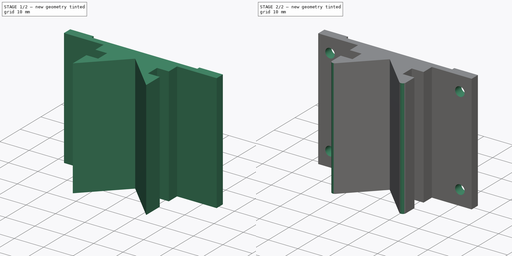
[diagram: build sequence overview — one tinted view per stage of 2, left to right]
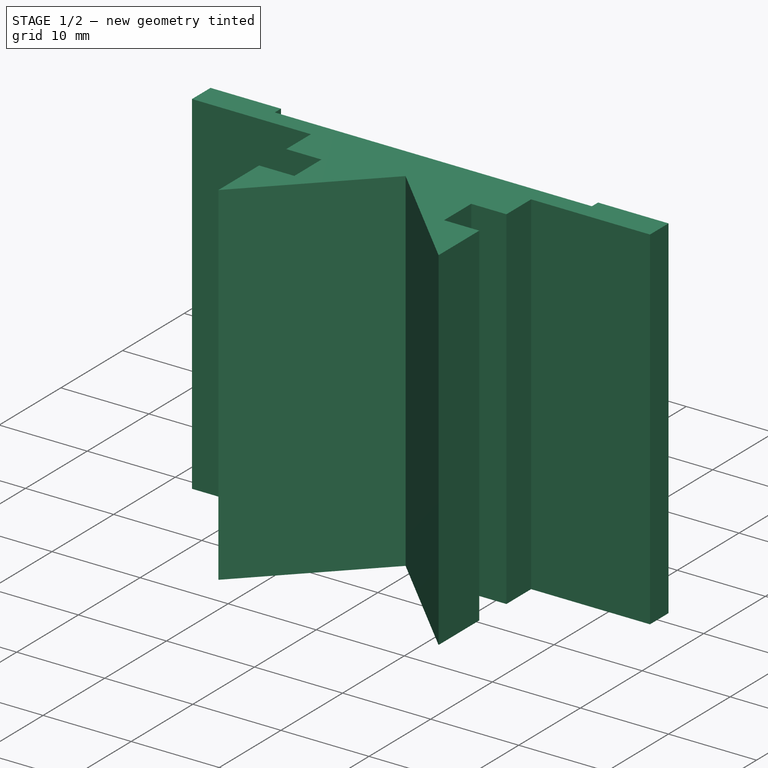
[diagram: stage 1 of 2 — iso view after this stage's code; geometry added in this stage tinted green]
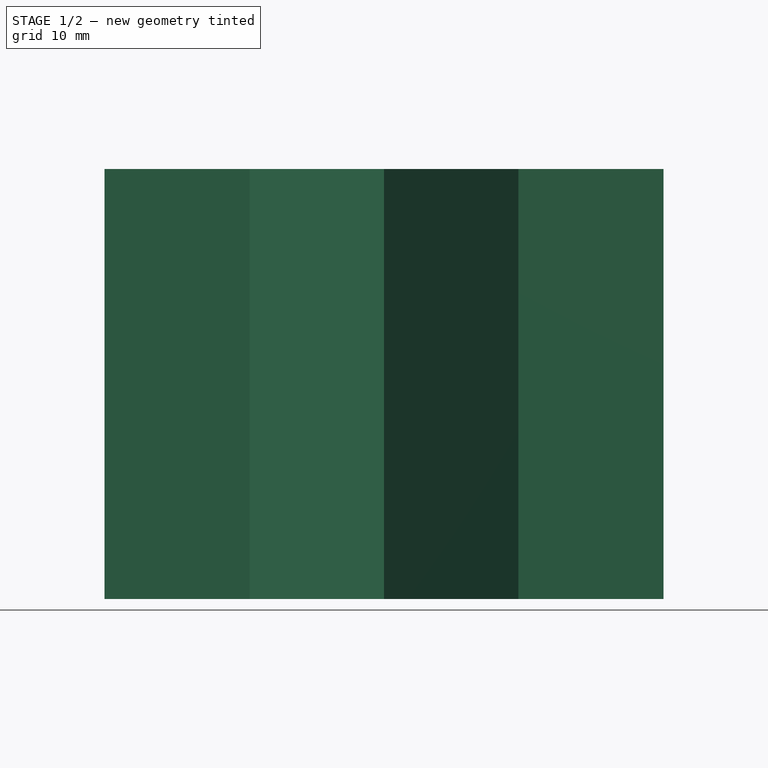
[diagram: stage 1 of 2 — front view after this stage's code; geometry added in this stage tinted green]
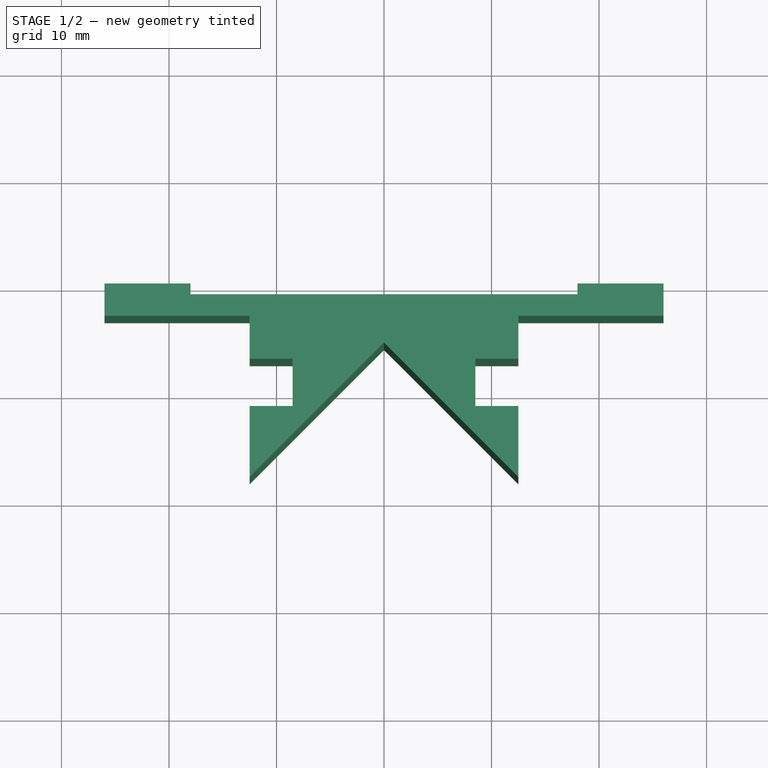
[diagram: stage 1 of 2 — top view after this stage's code; geometry added in this stage tinted green]
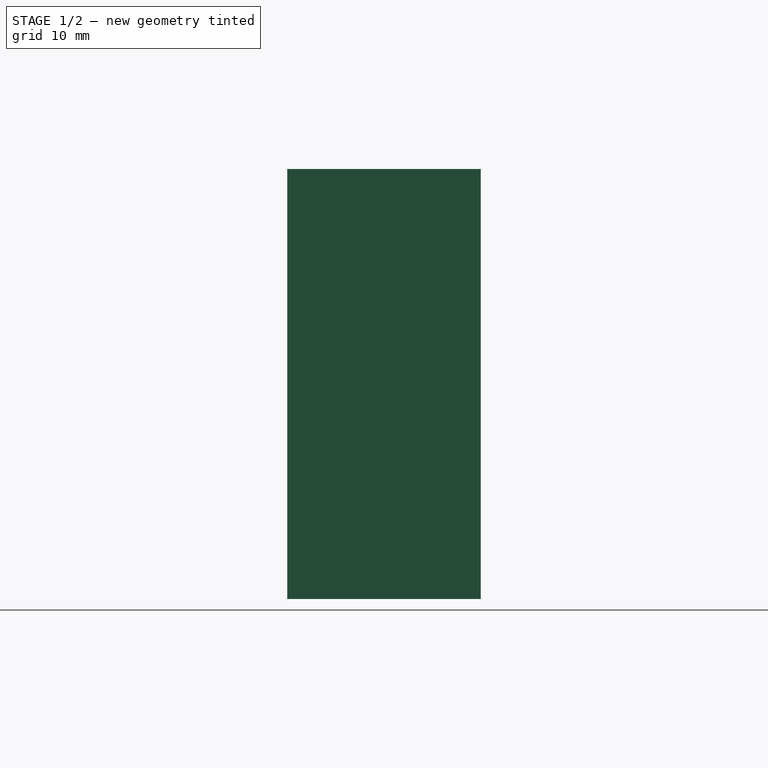
[diagram: stage 1 of 2 — right view after this stage's code; geometry added in this stage tinted green]
FCSTD DOCUMENT  (FreeCAD 0.18R16131 (Git))
Label: pen_holder_v-block
License: All rights reserved
LicenseURL: http://en.wikipedia.org/wiki/All_rights_reserved
objects: Sketcher::SketchObject×3, PartDesign::Pocket×2, PartDesign::Pad×1, PartDesign::Fillet×1, PartDesign::Body×1
note: 11 computed .brp shape members not serialized (recipe doc carries the construction recipe); baked Part::Feature solids carry a one-line shape summary decoded from their .brp

FEATURE [Sketcher::SketchObject] Sketch
  MapMode = 5
  Support = -> [XY_Plane]
  sketch-geometry (13):
    g0: LineSegment StartX=-12.5 StartY=-3 StartZ=0 EndX=-12.5 EndY=-18 EndZ=0
    g1: LineSegment StartX=-12.5 StartY=-18 StartZ=0 EndX=0 EndY=-5.5 EndZ=0
    g2: LineSegment StartX=0 StartY=-5.5 StartZ=0 EndX=12.5 EndY=-18 EndZ=0
    g3: LineSegment StartX=12.5 StartY=-18 StartZ=0 EndX=12.5 EndY=-3 EndZ=0
    g4: LineSegment StartX=-12.5 StartY=-3 StartZ=0 EndX=-26 EndY=-3 EndZ=0
    g5: LineSegment StartX=-26 StartY=-3 StartZ=0 EndX=-26 EndY=0 EndZ=0
    g6: LineSegment StartX=-26 StartY=0 StartZ=0 EndX=-18 EndY=0 EndZ=0
    g7: LineSegment StartX=26 StartY=0 StartZ=0 EndX=26 EndY=-3 EndZ=0
    g8: LineSegment StartX=26 StartY=-3 StartZ=0 EndX=12.5 EndY=-3 EndZ=0
    g9: LineSegment StartX=-18 StartY=0 StartZ=0 EndX=-18 EndY=-1 EndZ=0
    g10: LineSegment StartX=-18 StartY=-1 StartZ=0 EndX=18 EndY=-1 EndZ=0
    g11: LineSegment StartX=18 StartY=-1 StartZ=0 EndX=18 EndY=0 EndZ=0
    g12: LineSegment StartX=18 StartY=0 StartZ=0 EndX=26 EndY=0 EndZ=0
  constraints (35):
    c: Coincident(g0,g1)
    c: Coincident(g1,g2)
    c: Coincident(g2,g3)
    c: Vertical(g0)
    c: Symmetric(g0,g3,g-2)
    c: PointOnObject(g1,g-2)
    c: Perpendicular(g2,g1)
    c: DistanceY(g2,g3) = 15
    c: Symmetric(g0,g2,g-2)
    c: DistanceX(g0,g3) = 25
    c: Coincident(g4,g5)
    c: Coincident(g5,g6)
    c: Coincident(g12,g7)
    c: Coincident(g7,g8)
    c: Horizontal(g4)
    c: Vertical(g7)
    c: Vertical(g5)
    c: Symmetric(g5,g12,g-2)
    c: Equal(g5,g7)
    c: DistanceY(g4,g5) = 3
    c: Horizontal(g5,g-1)
    c: DistanceX(g5,g12) = 52
    c: Coincident(g4,g0)
    c: Coincident(g3,g8)
    c: Coincident(g9,g10)
    c: Coincident(g10,g11)
    c: Horizontal(g10)
    c: Vertical(g9)
    c: Vertical(g11)
    c: Tangent(g6,g12)
    c: Coincident(g9,g6)
    c: Coincident(g11,g12)
    c: Symmetric(g6,g11,g-2)
    c: DistanceY(g9,g9) = 1
    c: DistanceX(g6,g6) = 8
FEATURE [PartDesign::Pad] Pad
  Length = 40
  Length2 = 100
  Profile = -> Sketch
  Type = 0
FEATURE [Sketcher::SketchObject] Sketch001
  MapMode = 5
  sketch-geometry (8):
    g0: LineSegment StartX=-12.5 StartY=-7 StartZ=0 EndX=-8.5 EndY=-7 EndZ=0
    g1: LineSegment StartX=-8.5 StartY=-7 StartZ=0 EndX=-8.5 EndY=-11.4 EndZ=0
    g2: LineSegment StartX=-8.5 StartY=-11.4 StartZ=0 EndX=-12.5 EndY=-11.4 EndZ=0
    g3: LineSegment StartX=-12.5 StartY=-11.4 StartZ=0 EndX=-12.5 EndY=-7 EndZ=0
    g4: LineSegment StartX=12.5 StartY=-7 StartZ=0 EndX=8.5 EndY=-7 EndZ=0
    g5: LineSegment StartX=8.5 StartY=-7 StartZ=0 EndX=8.5 EndY=-11.4 EndZ=0
    g6: LineSegment StartX=8.5 StartY=-11.4 StartZ=0 EndX=12.5 EndY=-11.4 EndZ=0
    g7: LineSegment StartX=12.5 StartY=-11.4 StartZ=0 EndX=12.5 EndY=-7 EndZ=0
  constraints (21):
    c: Coincident(g0,g1)
    c: Coincident(g1,g2)
    c: Coincident(g2,g3)
    c: Coincident(g3,g0)
    c: Horizontal(g0)
    c: Horizontal(g2)
    c: Vertical(g1)
    c: Vertical(g3)
    c: DistanceY(g1,g0) = 4.4
    c: DistanceY(g0,g-1) = 7
    c: DistanceX(g2,g1) = 4
    c: DistanceX(g0,g-1) = 12.5
    c: Coincident(g4,g5)
    c: Coincident(g5,g6)
    c: Coincident(g6,g7)
    c: Coincident(g7,g4)
    c: Horizontal(g4)
    c: Vertical(g5)
    c: Symmetric(g1,g5,g-2)
    c: Symmetric(g6,g2,g-2)
    c: Symmetric(g0,g4,g-2)
FEATURE [PartDesign::Pocket] Pocket
  BaseFeature = -> Pad
  Length = 5
  Length2 = 100
  Midplane = true
  Profile = -> Sketch001
  Type = 1
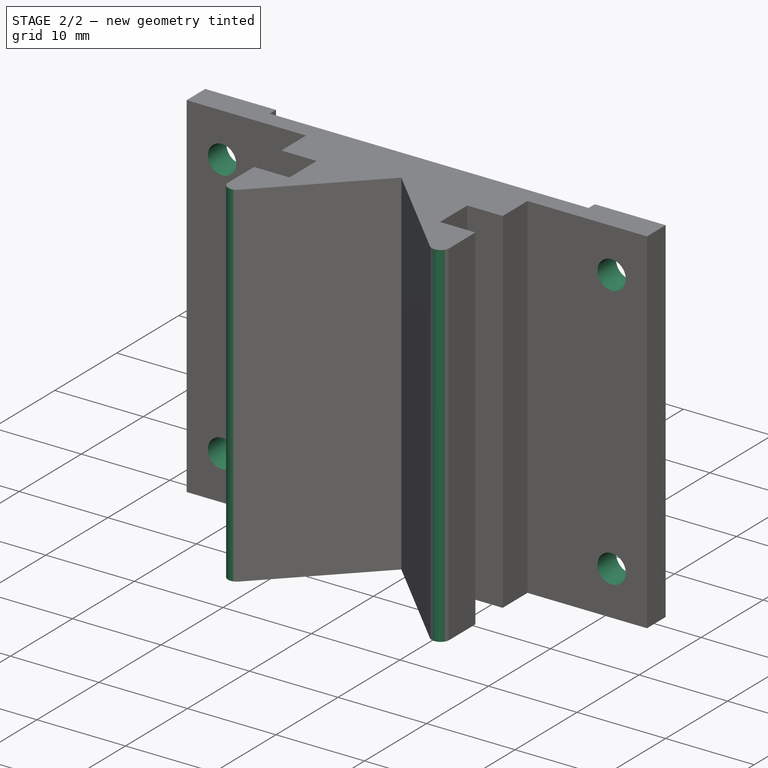
[diagram: stage 2 of 2 — iso view after this stage's code; geometry added in this stage tinted green]
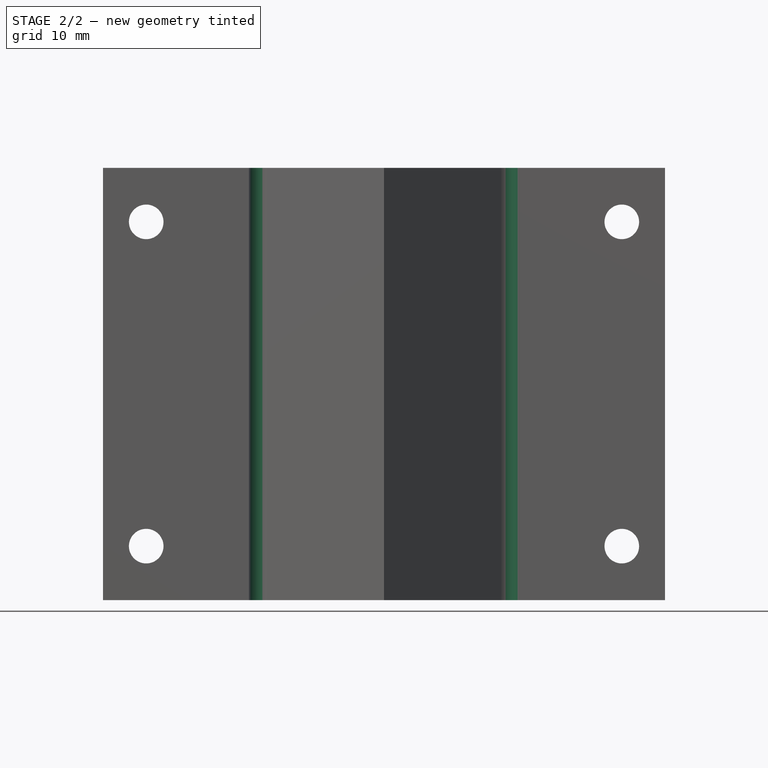
[diagram: stage 2 of 2 — front view after this stage's code; geometry added in this stage tinted green]
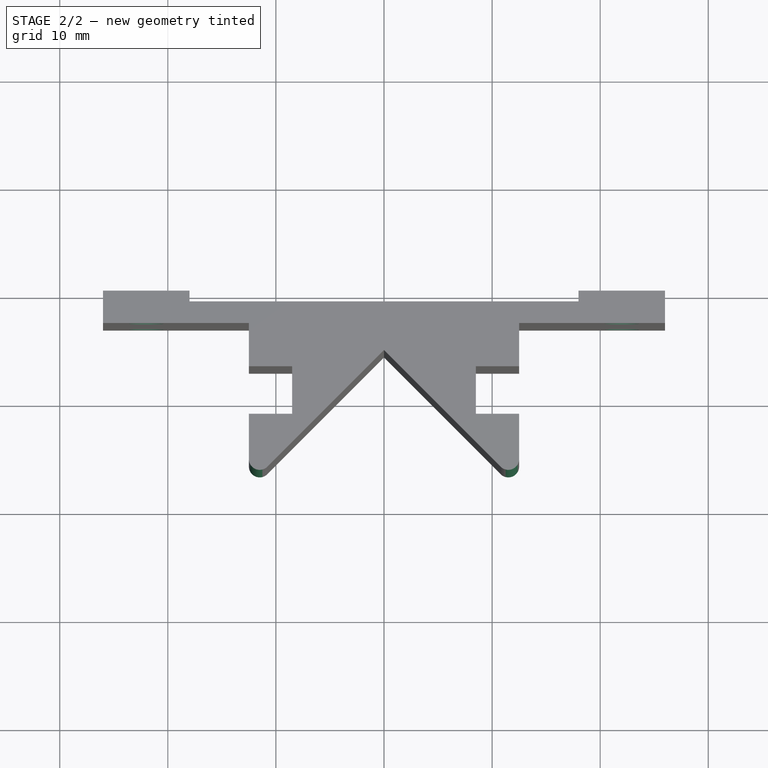
[diagram: stage 2 of 2 — top view after this stage's code; geometry added in this stage tinted green]
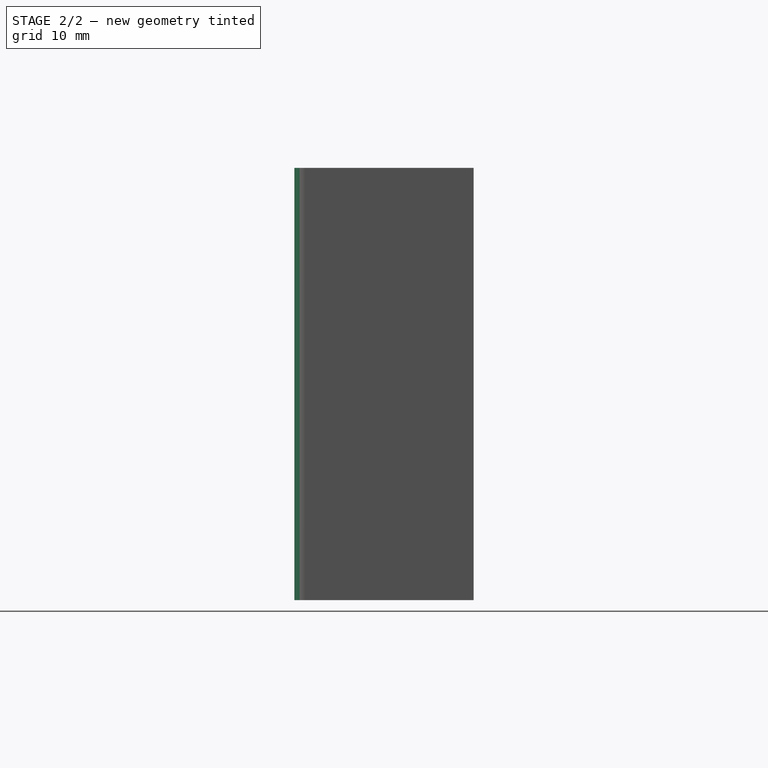
[diagram: stage 2 of 2 — right view after this stage's code; geometry added in this stage tinted green]
FEATURE [PartDesign::Fillet] Fillet
  Base = -> Pocket [Edge59,Edge57]
  BaseFeature = -> Pocket
  Radius = 1
FEATURE [Sketcher::SketchObject] Sketch002
  MapMode = 5
  Placement = pos=(0,-3,0) rot=(1,0,0;1.5708rad)
  Support = -> [Fillet]
  sketch-geometry (4):
    g0: Circle CenterX=-22 CenterY=5 CenterZ=0 NormalX=0 NormalY=0 NormalZ=1 AngleXU=0 Radius=1.6
    g1: Circle CenterX=-22 CenterY=35 CenterZ=0 NormalX=0 NormalY=0 NormalZ=1 AngleXU=0 Radius=1.6
    g2: Circle CenterX=22 CenterY=35 CenterZ=0 NormalX=0 NormalY=0 NormalZ=1 AngleXU=0 Radius=1.6
    g3: Circle CenterX=22 CenterY=5 CenterZ=0 NormalX=0 NormalY=0 NormalZ=1 AngleXU=0 Radius=1.6
  constraints (10):
    c: Symmetric(g0,g3,g-2)
    c: Symmetric(g1,g2,g-2)
    c: Vertical(g1,g0)
    c: Equal(g1,g0)
    c: Equal(g0,g2)
    c: Equal(g2,g3)
    c: Radius(g1) = 1.6
    c: DistanceX(g0,g-1) = 22
    c: DistanceY(g-1,g0) = 5
    c: DistanceY(g3,g2) = 30
FEATURE [PartDesign::Pocket] Pocket001
  BaseFeature = -> Fillet
  Length = 5
  Length2 = 100
  Profile = -> Sketch002
  Type = 1
FEATURE [PartDesign::Body] Body
  Group = -> [Sketch,Pad,Sketch001,Pocket,Fillet,Sketch002,Pocket001]
  Origin = -> Origin
  Tip = -> Pocket001
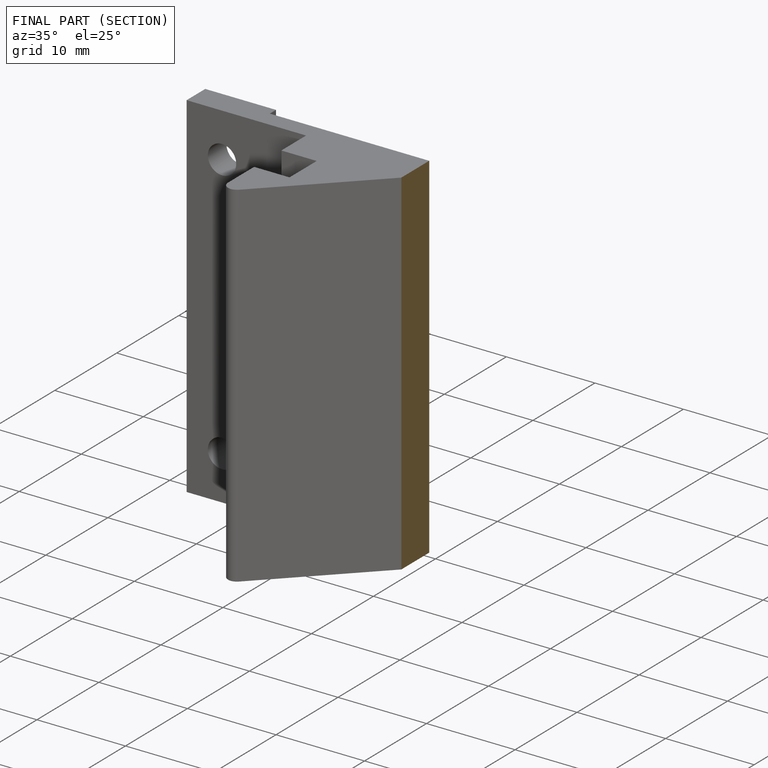
[diagram: finished part — half-section view (interior)]
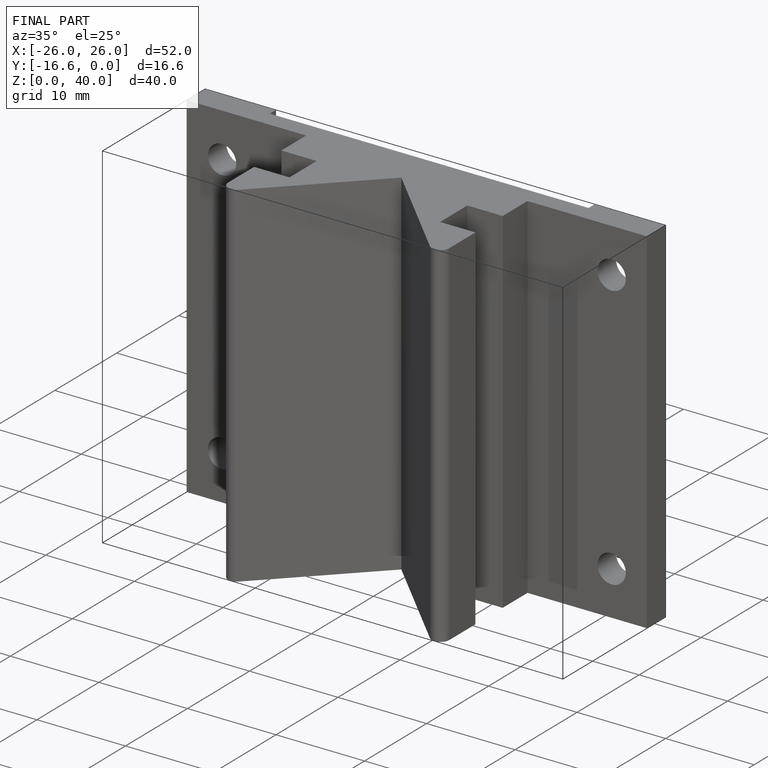
[diagram: finished part — iso view with bounding-box wireframe]
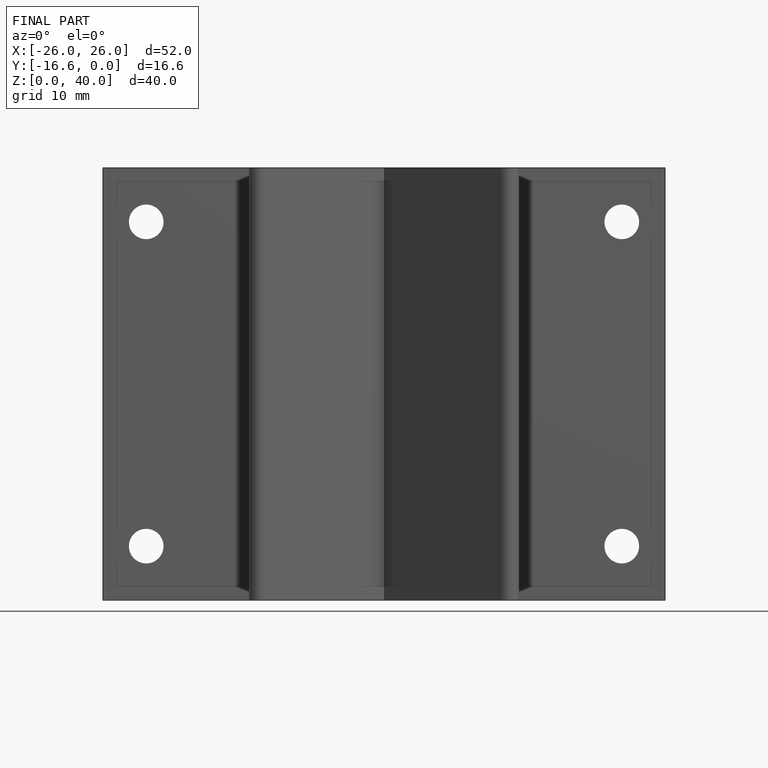
[diagram: finished part — front view with bounding-box wireframe]
